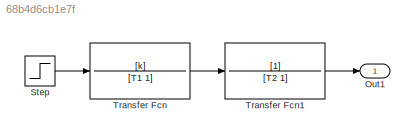
MODEL slx_68b4d6cb1e7f
KIND model
CONFIG AbsTol = auto
CONFIG EnableMultiTasking = off
CONFIG FixedStep = 0.1
CONFIG MaxStep = auto
CONFIG MinStep = auto
CONFIG RelTol = 1e-3
CONFIG SampleTimeConstraint = Unconstrained
CONFIG SolverName = FixedStepAuto
CONFIG StartTime = 0.0
CONFIG StopTime = 50
BLOCK [Outport] Out1
BLOCK [Step] Step
  After = 5
  SampleTime = 0
  Time = 0
BLOCK [TransferFcn] Transfer Fcn
  Denominator = [T1 1]
  Numerator = [k]
BLOCK [TransferFcn] Transfer Fcn1
  Denominator = [T2 1]
LINE Step:1 -> Transfer Fcn:1
LINE Transfer Fcn1:1 -> Out1:1
LINE Transfer Fcn:1 -> Transfer Fcn1:1
